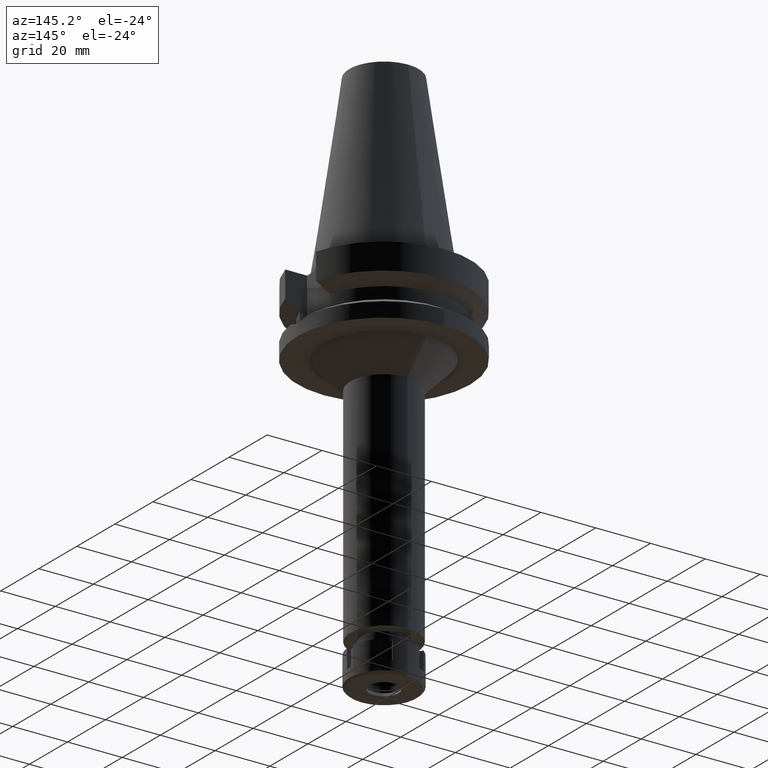
[diagram: clean part render]
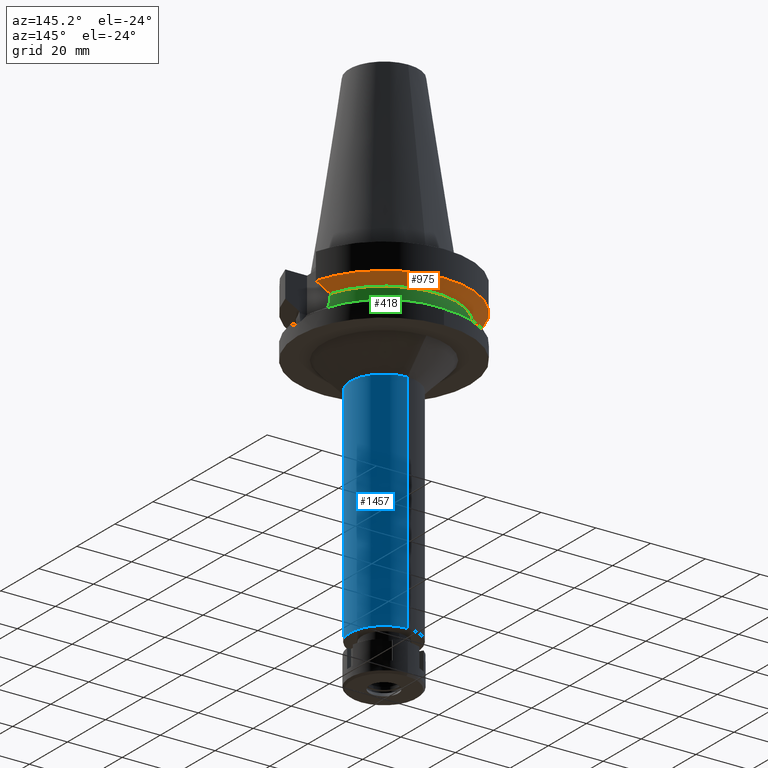
[diagram: same view with three faces highlighted in distinct colors, each labeled with its STEP entity id]
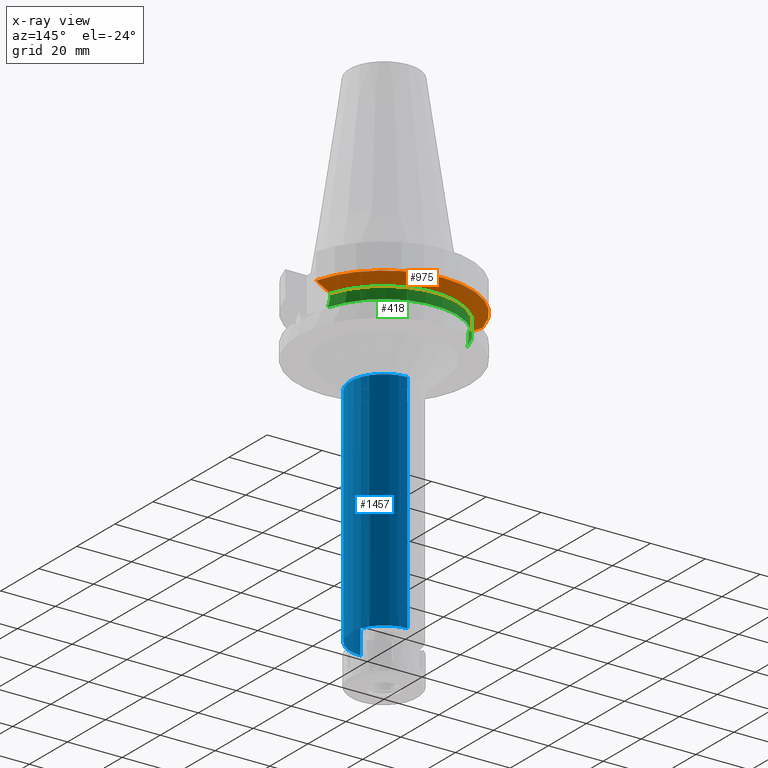
[diagram: x-ray of the same camera — body ghosted, the three highlighted faces saturated]
A machine part, auxiliary view with three faces highlighted in distinct colors.
The next image is the same camera in x-ray (body ghosted, the three faces saturated) — at least one of them is partly hidden behind the body in this view.
Their STEP definitions:

[orange] entity #975 — the highlighted conical surface has half-angle 60 deg.
#87 = B_SPLINE_CURVE_WITH_KNOTS ( 'NONE', 3,
 ( #1359, #803, #3026, #273 ),
 .UNSPECIFIED., .F., .F.,
 ( 4, 4 ),
 ( 0.0000000000000000000, 1.000000000000000000 ),
 .UNSPECIFIED. ) ;
#223 = CONICAL_SURFACE ( 'NONE', #753, 29.00000000000000000, 1.047197551196400456 ) ;
#271 = VERTEX_POINT ( 'NONE', #856 ) ;
#273 = CARTESIAN_POINT ( 'NONE',  ( -30.45402162749999775, 8.050004143598000539, -11.56546832889999976 ) ) ;
#301 = CARTESIAN_POINT ( 'NONE',  ( 0.0000000000000000000, 1.065333950388000029E-14, -11.56550565266999975 ) ) ;
#315 = EDGE_LOOP ( 'NONE', ( #732, #2912, #927, #484 ) ) ;
#357 = CARTESIAN_POINT ( 'NONE',  ( 25.24772413108000180, 8.049995416215001143, -14.45229202470999930 ) ) ;
#426 = CARTESIAN_POINT ( 'NONE',  ( 25.24772413108000180, 8.049995416215001143, -14.45229202470999930 ) ) ;
#473 = DIRECTION ( 'NONE',  ( -0.9527442516822307583, 0.3037735849057093818, 0.0000000000000000000 ) ) ;
#484 = ORIENTED_EDGE ( 'NONE', *, *, #1652, .T. ) ;
#622 = DIRECTION ( 'NONE',  ( 0.0000000000000000000, 1.000000000000000000, 0.0000000000000000000 ) ) ;
#627 = DIRECTION ( 'NONE',  ( 0.0000000000000000000, 1.000000000000000000, 0.0000000000000000000 ) ) ;
#732 = ORIENTED_EDGE ( 'NONE', *, *, #2568, .F. ) ;
#742 = AXIS2_PLACEMENT_3D ( 'NONE', #1616, #2438, #473 ) ;
#753 = AXIS2_PLACEMENT_3D ( 'NONE', #1697, #1161, #622 ) ;
#803 = CARTESIAN_POINT ( 'NONE',  ( -26.83758148153465939, 8.050003176075431810, -13.57772735322464008 ) ) ;
#808 = CIRCLE ( 'NONE', #742, 26.50000000000000711 ) ;
#856 = CARTESIAN_POINT ( 'NONE',  ( -25.24772216379000156, 8.050001586326001046, -14.45224487768000188 ) ) ;
#927 = ORIENTED_EDGE ( 'NONE', *, *, #2841, .F. ) ;
#948 = CARTESIAN_POINT ( 'NONE',  ( 28.57292329788786134, 8.049998556601504873, -12.61549605119865802 ) ) ;
#975 = ADVANCED_FACE ( 'NONE', ( #1127 ), #223, .T. ) ;
#1085 = EDGE_CURVE ( 'NONE', #2502, #1570, #2729, .T. ) ;
#1127 = FACE_OUTER_BOUND ( 'NONE', #315, .T. ) ;
#1161 = DIRECTION ( 'NONE',  ( 0.0000000000000000000, 0.0000000000000000000, 1.000000000000000000 ) ) ;
#1359 = CARTESIAN_POINT ( 'NONE',  ( -25.24772216379000156, 8.050001586326001046, -14.45224487768000188 ) ) ;
#1460 = AXIS2_PLACEMENT_3D ( 'NONE', #301, #3090, #627 ) ;
#1570 = VERTEX_POINT ( 'NONE', #357 ) ;
#1616 = CARTESIAN_POINT ( 'NONE',  ( 0.0000000000000000000, 1.065333950388000029E-14, -14.45225699861000024 ) ) ;
#1619 = CARTESIAN_POINT ( 'NONE',  ( 30.45402291367999936, 8.049999277830000466, -11.56551215709999880 ) ) ;
#1652 = EDGE_CURVE ( 'NONE', #271, #2888, #87, .T. ) ;
#1697 = CARTESIAN_POINT ( 'NONE',  ( 0.0000000000000000000, 1.065333950388000029E-14, -13.00888132564000088 ) ) ;
#1759 = CIRCLE ( 'NONE', #1460, 31.50000000000000000 ) ;
#2208 = CARTESIAN_POINT ( 'NONE',  ( -30.45402162749999775, 8.050004143598000539, -11.56546832889999976 ) ) ;
#2438 = DIRECTION ( 'NONE',  ( 0.0000000000000000000, 0.0000000000000000000, -1.000000000000000000 ) ) ;
#2502 = VERTEX_POINT ( 'NONE', #1619 ) ;
#2568 = EDGE_CURVE ( 'NONE', #2502, #2888, #1759, .T. ) ;
#2659 = CARTESIAN_POINT ( 'NONE',  ( 30.45402291367999936, 8.049999277830000466, -11.56551215709999880 ) ) ;
#2729 = B_SPLINE_CURVE_WITH_KNOTS ( 'NONE', 3,
 ( #2659, #948, #3227, #426 ),
 .UNSPECIFIED., .F., .F.,
 ( 4, 4 ),
 ( 0.0000000000000000000, 1.000000000000000000 ),
 .UNSPECIFIED. ) ;
#2841 = EDGE_CURVE ( 'NONE', #271, #1570, #808, .T. ) ;
#2888 = VERTEX_POINT ( 'NONE', #2208 ) ;
#2912 = ORIENTED_EDGE ( 'NONE', *, *, #1085, .T. ) ;
#3026 = CARTESIAN_POINT ( 'NONE',  ( -28.57295871225890593, 8.050008282160273865, -12.61547480433793744 ) ) ;
#3090 = DIRECTION ( 'NONE',  ( 0.0000000000000000000, 0.0000000000000000000, 1.000000000000000000 ) ) ;
#3227 = CARTESIAN_POINT ( 'NONE',  ( 26.83754616781905966, 8.049990822277612423, -13.57774887665298991 ) ) ;

[blue] entity #1457 — the highlighted cylindrical surface (partial cylindrical patch) has radius 12.25 mm, axis along (0, 0, -1).
#125 = CARTESIAN_POINT ( 'NONE',  ( 0.0000000000000000000, 12.25000000000000000, -119.5000000000000000 ) ) ;
#259 = DIRECTION ( 'NONE',  ( 0.0000000000000000000, -1.000000000000000000, 0.0000000000000000000 ) ) ;
#525 = VERTEX_POINT ( 'NONE', #1742 ) ;
#596 = EDGE_CURVE ( 'NONE', #3312, #1030, #716, .T. ) ;
#642 = ORIENTED_EDGE ( 'NONE', *, *, #596, .F. ) ;
#662 = CARTESIAN_POINT ( 'NONE',  ( 0.0000000000000000000, 12.25000000000000000, -37.00000000000000000 ) ) ;
#716 = LINE ( 'NONE', #662, #2534 ) ;
#774 = VERTEX_POINT ( 'NONE', #3562 ) ;
#895 = FACE_OUTER_BOUND ( 'NONE', #3107, .T. ) ;
#931 = AXIS2_PLACEMENT_3D ( 'NONE', #3079, #2808, #259 ) ;
#1002 = DIRECTION ( 'NONE',  ( 0.0000000000000000000, 0.0000000000000000000, -1.000000000000000000 ) ) ;
#1030 = VERTEX_POINT ( 'NONE', #125 ) ;
#1242 = LINE ( 'NONE', #2945, #3212 ) ;
#1261 = ORIENTED_EDGE ( 'NONE', *, *, #2248, .T. ) ;
#1296 = ORIENTED_EDGE ( 'NONE', *, *, #2816, .T. ) ;
#1457 = ADVANCED_FACE ( 'NONE', ( #895 ), #3334, .T. ) ;
#1547 = DIRECTION ( 'NONE',  ( 0.0000000000000000000, 0.0000000000000000000, -1.000000000000000000 ) ) ;
#1742 = CARTESIAN_POINT ( 'NONE',  ( 0.0000000000000000000, -12.25000000000000000, -37.00000000000000000 ) ) ;
#1821 = CIRCLE ( 'NONE', #3465, 12.25000000000000000 ) ;
#1836 = CARTESIAN_POINT ( 'NONE',  ( 0.0000000000000000000, 0.0000000000000000000, -37.00000000000000000 ) ) ;
#1871 = DIRECTION ( 'NONE',  ( 0.0000000000000000000, -1.000000000000000000, 0.0000000000000000000 ) ) ;
#2137 = DIRECTION ( 'NONE',  ( 0.0000000000000000000, 0.0000000000000000000, -1.000000000000000000 ) ) ;
#2248 = EDGE_CURVE ( 'NONE', #525, #774, #1242, .T. ) ;
#2386 = DIRECTION ( 'NONE',  ( 0.0000000000000000000, 1.000000000000000000, 0.0000000000000000000 ) ) ;
#2534 = VECTOR ( 'NONE', #2137, 1000.000000000000000 ) ;
#2632 = CIRCLE ( 'NONE', #3103, 12.25000000000000000 ) ;
#2808 = DIRECTION ( 'NONE',  ( 0.0000000000000000000, 0.0000000000000000000, -1.000000000000000000 ) ) ;
#2816 = EDGE_CURVE ( 'NONE', #3312, #525, #2632, .T. ) ;
#2920 = CARTESIAN_POINT ( 'NONE',  ( 0.0000000000000000000, 12.25000000000000000, -37.00000000000000000 ) ) ;
#2945 = CARTESIAN_POINT ( 'NONE',  ( 0.0000000000000000000, -12.25000000000000000, -37.00000000000000000 ) ) ;
#3079 = CARTESIAN_POINT ( 'NONE',  ( 0.0000000000000000000, 2.144601474666999952E-14, 75.12000000000000455 ) ) ;
#3103 = AXIS2_PLACEMENT_3D ( 'NONE', #1836, #1547, #2386 ) ;
#3107 = EDGE_LOOP ( 'NONE', ( #1296, #1261, #3154, #642 ) ) ;
#3154 = ORIENTED_EDGE ( 'NONE', *, *, #3492, .T. ) ;
#3212 = VECTOR ( 'NONE', #1002, 1000.000000000000000 ) ;
#3260 = DIRECTION ( 'NONE',  ( 0.0000000000000000000, 0.0000000000000000000, 1.000000000000000000 ) ) ;
#3312 = VERTEX_POINT ( 'NONE', #2920 ) ;
#3334 = CYLINDRICAL_SURFACE ( 'NONE', #931, 12.25000000000000000 ) ;
#3465 = AXIS2_PLACEMENT_3D ( 'NONE', #3539, #3260, #1871 ) ;
#3492 = EDGE_CURVE ( 'NONE', #774, #1030, #1821, .T. ) ;
#3539 = CARTESIAN_POINT ( 'NONE',  ( 0.0000000000000000000, 2.144601474666999952E-14, -119.5000000000000000 ) ) ;
#3562 = CARTESIAN_POINT ( 'NONE',  ( 0.0000000000000000000, -12.25000000000000000, -119.5000000000000000 ) ) ;

[green] entity #418 — the highlighted cylindrical surface (partial cylindrical patch) has radius 26.5 mm, axis along (0, 0, -1).
#35 = VECTOR ( 'NONE', #599, 1000.000000000000114 ) ;
#136 = CARTESIAN_POINT ( 'NONE',  ( 25.27269391207094884, 7.973288729587363122, -16.24537813315794210 ) ) ;
#148 = EDGE_CURVE ( 'NONE', #1612, #2900, #1785, .T. ) ;
#182 = VERTEX_POINT ( 'NONE', #1365 ) ;
#188 = DIRECTION ( 'NONE',  ( 0.0000000000000000000, 1.000000000000000000, 0.0000000000000000000 ) ) ;
#229 = CARTESIAN_POINT ( 'NONE',  ( -25.25396277509630139, 8.030907860994670244, -15.59359823563421266 ) ) ;
#271 = VERTEX_POINT ( 'NONE', #856 ) ;
#320 = CYLINDRICAL_SURFACE ( 'NONE', #3565, 26.50000000000000000 ) ;
#357 = CARTESIAN_POINT ( 'NONE',  ( 25.24772413108000180, 8.049995416215001143, -14.45229202470999930 ) ) ;
#369 = CARTESIAN_POINT ( 'NONE',  ( 0.0000000000000000000, 2.144601474666999952E-14, 75.12000000000000455 ) ) ;
#418 = ADVANCED_FACE ( 'NONE', ( #2571 ), #320, .T. ) ;
#473 = DIRECTION ( 'NONE',  ( -0.9527442516822307583, 0.3037735849057093818, 0.0000000000000000000 ) ) ;
#503 = ORIENTED_EDGE ( 'NONE', *, *, #2041, .F. ) ;
#572 = CIRCLE ( 'NONE', #921, 26.50000000000000000 ) ;
#599 = DIRECTION ( 'NONE',  ( 2.936452962162938233E-06, -9.209788393883796756E-06, 0.9999999999532784845 ) ) ;
#679 = CARTESIAN_POINT ( 'NONE',  ( 25.32550670071636034, 7.802071535294315296, -16.93256103017734304 ) ) ;
#718 = CARTESIAN_POINT ( 'NONE',  ( 25.37573308864354971, 7.637710303585528493, -17.49818662997505925 ) ) ;
#731 = CARTESIAN_POINT ( 'NONE',  ( 25.44392837596912571, 7.408239564849618652, -18.11709494221907590 ) ) ;
#740 = CARTESIAN_POINT ( 'NONE',  ( -25.31202500689252233, 7.845732311880527554, -16.75278555881673270 ) ) ;
#742 = AXIS2_PLACEMENT_3D ( 'NONE', #1616, #2438, #473 ) ;
#754 = CARTESIAN_POINT ( 'NONE',  ( 25.39164951579482832, 7.584807667157175359, -17.65197957209930379 ) ) ;
#782 = CARTESIAN_POINT ( 'NONE',  ( -25.29452346095226645, 7.902092865019969992, -16.48827265655049601 ) ) ;
#808 = CIRCLE ( 'NONE', #742, 26.50000000000000711 ) ;
#831 = CARTESIAN_POINT ( 'NONE',  ( -25.53175183775000079, 7.097862220092999941, -18.74774300138999905 ) ) ;
#856 = CARTESIAN_POINT ( 'NONE',  ( -25.24772216379000156, 8.050001586326001046, -14.45224487768000188 ) ) ;
#921 = AXIS2_PLACEMENT_3D ( 'NONE', #3053, #1974, #188 ) ;
#1015 = CARTESIAN_POINT ( 'NONE',  ( -25.43786288019324360, 7.435590607929920992, -18.11653926700929418 ) ) ;
#1147 = ORIENTED_EDGE ( 'NONE', *, *, #2147, .F. ) ;
#1192 = DIRECTION ( 'NONE',  ( 0.0000000000000000000, 0.0000000000000000000, -1.000000000000000000 ) ) ;
#1273 = CARTESIAN_POINT ( 'NONE',  ( 25.24772266958000344, 8.050000000000000711, -14.94999999999999929 ) ) ;
#1365 = CARTESIAN_POINT ( 'NONE',  ( -25.24772266958000344, 8.050000000000000711, -14.94999999999999929 ) ) ;
#1423 = ORIENTED_EDGE ( 'NONE', *, *, #2841, .T. ) ;
#1446 = DIRECTION ( 'NONE',  ( 0.0000000000000000000, -1.000000000000000000, 0.0000000000000000000 ) ) ;
#1519 = CARTESIAN_POINT ( 'NONE',  ( 25.24772266958001410, 8.050000000000000711, -15.58999736333209363 ) ) ;
#1556 = ORIENTED_EDGE ( 'NONE', *, *, #1753, .T. ) ;
#1568 = CARTESIAN_POINT ( 'NONE',  ( 25.32844777904740141, 7.792527725331447108, -16.96974754119624507 ) ) ;
#1570 = VERTEX_POINT ( 'NONE', #357 ) ;
#1582 = CARTESIAN_POINT ( 'NONE',  ( -25.27268309164520588, 7.971812745161291680, -16.08115051883406110 ) ) ;
#1612 = VERTEX_POINT ( 'NONE', #1764 ) ;
#1614 = CARTESIAN_POINT ( 'NONE',  ( -25.32118071774146983, 7.816100027254242022, -16.87651110713151681 ) ) ;
#1616 = CARTESIAN_POINT ( 'NONE',  ( 0.0000000000000000000, 1.065333950388000029E-14, -14.45225699861000024 ) ) ;
#1716 = VERTEX_POINT ( 'NONE', #831 ) ;
#1753 = EDGE_CURVE ( 'NONE', #1612, #1716, #572, .T. ) ;
#1764 = CARTESIAN_POINT ( 'NONE',  ( 25.53175183775000079, 7.097862220092999941, -18.74774300138999905 ) ) ;
#1785 = B_SPLINE_CURVE_WITH_KNOTS ( 'NONE', 3,
 ( #3269, #3252, #731, #754, #718, #3203, #2978, #3545, #1568, #679, #2684, #136, #1519, #1273 ),
 .UNSPECIFIED., .F., .F.,
 ( 4, 2, 2, 1, 1, 2, 2, 4 ),
 ( 0.0000000000000000000, 0.2499999999999837352, 0.3749999999999755196, 0.4374999999999714673, 0.4687499999999693578, 0.4843749999999682476, 0.4999999999999671929, 1.000000000000000000 ),
 .UNSPECIFIED. ) ;
#1974 = DIRECTION ( 'NONE',  ( 0.0000000000000000000, 0.0000000000000000000, 1.000000000000000000 ) ) ;
#2041 = EDGE_CURVE ( 'NONE', #2900, #1570, #2861, .T. ) ;
#2095 = CARTESIAN_POINT ( 'NONE',  ( -25.24772216379000156, 8.050001586326001046, -14.45224487768000188 ) ) ;
#2103 = ORIENTED_EDGE ( 'NONE', *, *, #3419, .F. ) ;
#2147 = EDGE_CURVE ( 'NONE', #271, #182, #3264, .T. ) ;
#2422 = CARTESIAN_POINT ( 'NONE',  ( -25.31648570732018300, 7.831303109279970087, -16.81376729956180682 ) ) ;
#2438 = DIRECTION ( 'NONE',  ( 0.0000000000000000000, 0.0000000000000000000, -1.000000000000000000 ) ) ;
#2460 = CARTESIAN_POINT ( 'NONE',  ( -25.28048322354059252, 7.947042364861427011, -16.24399973116642926 ) ) ;
#2479 = CARTESIAN_POINT ( 'NONE',  ( -25.31950825842965003, 7.821518470897454556, -16.85441217853278317 ) ) ;
#2571 = FACE_OUTER_BOUND ( 'NONE', #3640, .T. ) ;
#2684 = CARTESIAN_POINT ( 'NONE',  ( 25.32419709970849553, 7.806318959903377319, -16.91578803900454275 ) ) ;
#2695 = CARTESIAN_POINT ( 'NONE',  ( -25.53175183775000079, 7.097862220092999941, -18.74774300138999905 ) ) ;
#2727 = CARTESIAN_POINT ( 'NONE',  ( -25.36814691286843981, 7.663833599050875023, -17.48802854147058738 ) ) ;
#2736 = VECTOR ( 'NONE', #3493, 1000.000000000000114 ) ;
#2841 = EDGE_CURVE ( 'NONE', #271, #1570, #808, .T. ) ;
#2861 = LINE ( 'NONE', #3390, #35 ) ;
#2900 = VERTEX_POINT ( 'NONE', #3350 ) ;
#2978 = CARTESIAN_POINT ( 'NONE',  ( 25.34388450893356293, 7.742333382853579415, -17.15666984746628287 ) ) ;
#2991 = CARTESIAN_POINT ( 'NONE',  ( -25.30212858955025723, 7.877670097770154811, -16.61040846294178408 ) ) ;
#3053 = CARTESIAN_POINT ( 'NONE',  ( 0.0000000000000000000, 0.0000000000000000000, -18.74774300138999905 ) ) ;
#3159 = B_SPLINE_CURVE_WITH_KNOTS ( 'NONE', 3,
 ( #3303, #3554, #229, #1582, #2460, #782, #2991, #740, #2422, #2479, #1614, #2727, #1015, #2695 ),
 .UNSPECIFIED., .F., .F.,
 ( 4, 2, 2, 1, 1, 2, 2, 4 ),
 ( 0.0000000000000000000, 0.2499999999999977796, 0.3749999999999973355, 0.4374999999999971689, 0.4687499999999970579, 0.4843749999999968914, 0.4999999999999967804, 1.000000000000000000 ),
 .UNSPECIFIED. ) ;
#3203 = CARTESIAN_POINT ( 'NONE',  ( 25.35412323727685546, 7.708830947829163449, -17.27007949507370199 ) ) ;
#3252 = CARTESIAN_POINT ( 'NONE',  ( 25.48482038771259894, 7.266679548265874367, -18.43222872480207286 ) ) ;
#3264 = LINE ( 'NONE', #2095, #2736 ) ;
#3269 = CARTESIAN_POINT ( 'NONE',  ( 25.53175183775000079, 7.097862220092999941, -18.74774300138999905 ) ) ;
#3303 = CARTESIAN_POINT ( 'NONE',  ( -25.24772266958000344, 8.050000000000000711, -14.94999999999999929 ) ) ;
#3340 = ORIENTED_EDGE ( 'NONE', *, *, #148, .F. ) ;
#3350 = CARTESIAN_POINT ( 'NONE',  ( 25.24772266958000344, 8.050000000000000711, -14.94999999999999929 ) ) ;
#3390 = CARTESIAN_POINT ( 'NONE',  ( 25.24772266958000344, 8.050000000000000711, -14.94999999999999929 ) ) ;
#3419 = EDGE_CURVE ( 'NONE', #182, #1716, #3159, .T. ) ;
#3493 = DIRECTION ( 'NONE',  ( -1.016132005805006191E-06, -3.186960720837015898E-06, -0.9999999999944053641 ) ) ;
#3545 = CARTESIAN_POINT ( 'NONE',  ( 25.33293017121149404, 7.777974374833198645, -17.02562462728289816 ) ) ;
#3554 = CARTESIAN_POINT ( 'NONE',  ( -25.24772266958000699, 8.050000000000020250, -15.26991016305875348 ) ) ;
#3565 = AXIS2_PLACEMENT_3D ( 'NONE', #369, #1192, #1446 ) ;
#3640 = EDGE_LOOP ( 'NONE', ( #1423, #503, #3340, #1556, #2103, #1147 ) ) ;